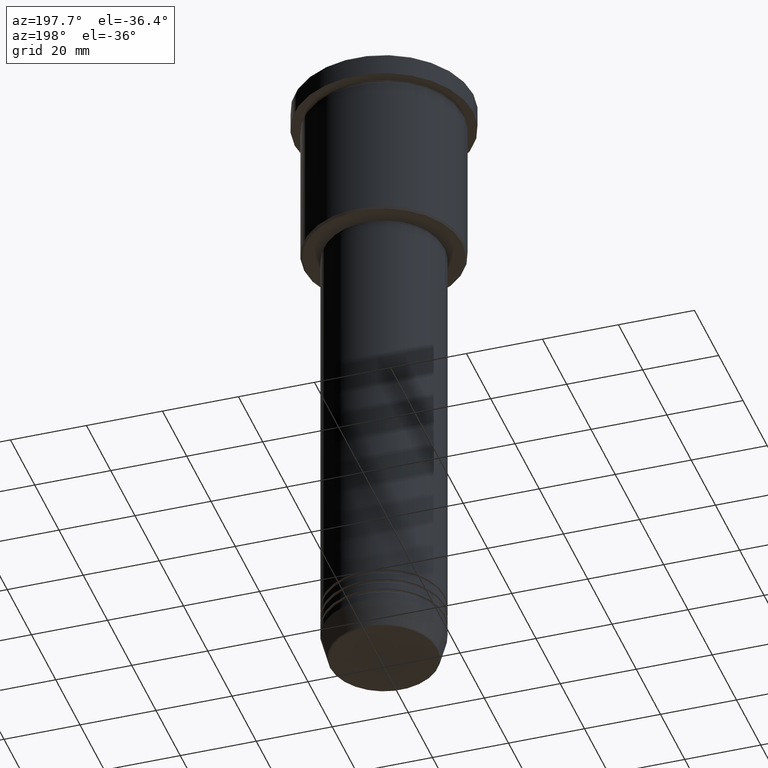
[diagram: clean part render]
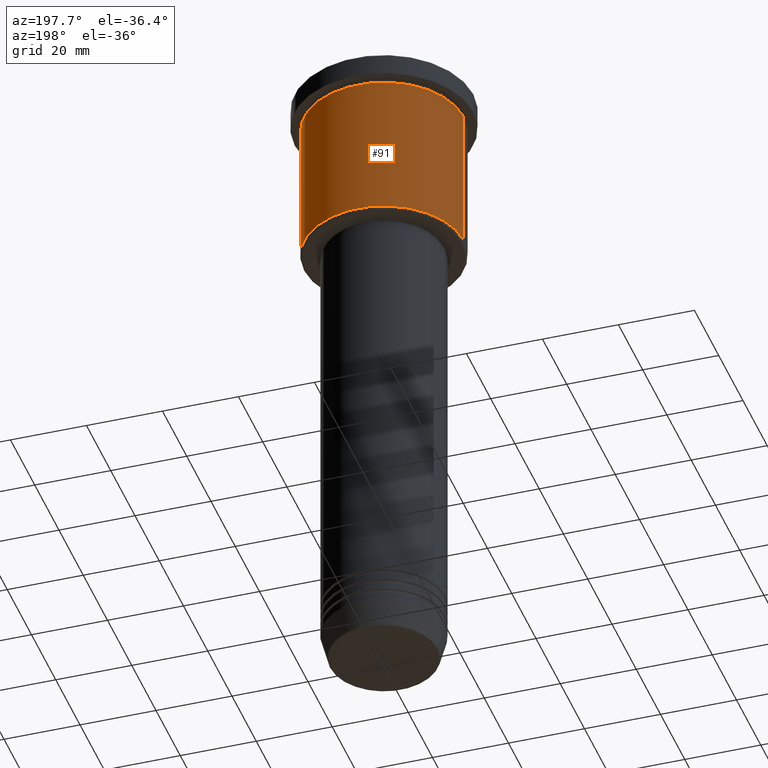
[diagram: same view with one face highlighted and labeled with its STEP entity id]
A machine part, auxiliary view. The second image highlights one B-rep face of the part: STEP entity #91.
In plain terms, the highlighted cylindrical surface (partial cylindrical patch) has radius 21 mm, axis along (-0, -0, 1).
Its self-contained STEP definition (entity closure, byte-faithful):
#11 = DIRECTION ( 'NONE',  ( -0.000000000000000000, -0.000000000000000000, 1.000000000000000000 ) ) ;
#56 = DIRECTION ( 'NONE',  ( 1.000000000000000000, 0.000000000000000000, 0.000000000000000000 ) ) ;
#89 = CARTESIAN_POINT ( 'NONE',  ( -21.00000000000000000, 2.571758278209441661E-15, -45.49999999999997158 ) ) ;
#91 = ADVANCED_FACE ( 'NONE', ( #639 ), #1005, .T. ) ;
#103 = CARTESIAN_POINT ( 'NONE',  ( 0.000000000000000000, 0.000000000000000000, 0.000000000000000000 ) ) ;
#106 = DIRECTION ( 'NONE',  ( -0.000000000000000000, -0.000000000000000000, 1.000000000000000000 ) ) ;
#122 = DIRECTION ( 'NONE',  ( -0.000000000000000000, -0.000000000000000000, 1.000000000000000000 ) ) ;
#159 = ORIENTED_EDGE ( 'NONE', *, *, #551, .F. ) ;
#163 = LINE ( 'NONE', #526, #422 ) ;
#266 = CARTESIAN_POINT ( 'NONE',  ( 0.000000000000000000, 0.000000000000000000, -45.49999999999997158 ) ) ;
#292 = LINE ( 'NONE', #828, #866 ) ;
#335 = EDGE_LOOP ( 'NONE', ( #774, #628, #159, #1082 ) ) ;
#382 = EDGE_CURVE ( 'NONE', #995, #916, #163, .T. ) ;
#387 = DIRECTION ( 'NONE',  ( 1.000000000000000000, 0.000000000000000000, 0.000000000000000000 ) ) ;
#422 = VECTOR ( 'NONE', #122, 1000.000000000000000 ) ;
#482 = EDGE_CURVE ( 'NONE', #633, #530, #292, .T. ) ;
#495 = CARTESIAN_POINT ( 'NONE',  ( 0.000000000000000000, 0.000000000000000000, -6.999999999999994671 ) ) ;
#526 = CARTESIAN_POINT ( 'NONE',  ( 21.00000000000000000, 0.000000000000000000, 0.000000000000000000 ) ) ;
#530 = VERTEX_POINT ( 'NONE', #581 ) ;
#535 = CIRCLE ( 'NONE', #796, 21.00000000000000000 ) ;
#551 = EDGE_CURVE ( 'NONE', #916, #530, #535, .T. ) ;
#581 = CARTESIAN_POINT ( 'NONE',  ( -21.00000000000000000, 2.571758278209441661E-15, -6.999999999999994671 ) ) ;
#582 = CARTESIAN_POINT ( 'NONE',  ( 21.00000000000000000, 0.000000000000000000, -6.999999999999994671 ) ) ;
#591 = DIRECTION ( 'NONE',  ( -0.000000000000000000, -0.000000000000000000, 1.000000000000000000 ) ) ;
#625 = AXIS2_PLACEMENT_3D ( 'NONE', #103, #11, #387 ) ;
#628 = ORIENTED_EDGE ( 'NONE', *, *, #482, .T. ) ;
#633 = VERTEX_POINT ( 'NONE', #89 ) ;
#639 = FACE_OUTER_BOUND ( 'NONE', #335, .T. ) ;
#643 = EDGE_CURVE ( 'NONE', #995, #633, #650, .T. ) ;
#650 = CIRCLE ( 'NONE', #1132, 21.00000000000000000 ) ;
#736 = DIRECTION ( 'NONE',  ( -1.000000000000000000, 0.000000000000000000, 0.000000000000000000 ) ) ;
#774 = ORIENTED_EDGE ( 'NONE', *, *, #643, .T. ) ;
#796 = AXIS2_PLACEMENT_3D ( 'NONE', #495, #591, #56 ) ;
#828 = CARTESIAN_POINT ( 'NONE',  ( -21.00000000000000000, 2.571758278209441661E-15, 0.000000000000000000 ) ) ;
#832 = DIRECTION ( 'NONE',  ( -0.000000000000000000, -0.000000000000000000, 1.000000000000000000 ) ) ;
#866 = VECTOR ( 'NONE', #106, 1000.000000000000000 ) ;
#916 = VERTEX_POINT ( 'NONE', #582 ) ;
#923 = CARTESIAN_POINT ( 'NONE',  ( 21.00000000000000000, 0.000000000000000000, -45.49999999999997158 ) ) ;
#995 = VERTEX_POINT ( 'NONE', #923 ) ;
#1005 = CYLINDRICAL_SURFACE ( 'NONE', #625, 21.00000000000000000 ) ;
#1082 = ORIENTED_EDGE ( 'NONE', *, *, #382, .F. ) ;
#1132 = AXIS2_PLACEMENT_3D ( 'NONE', #266, #832, #736 ) ;